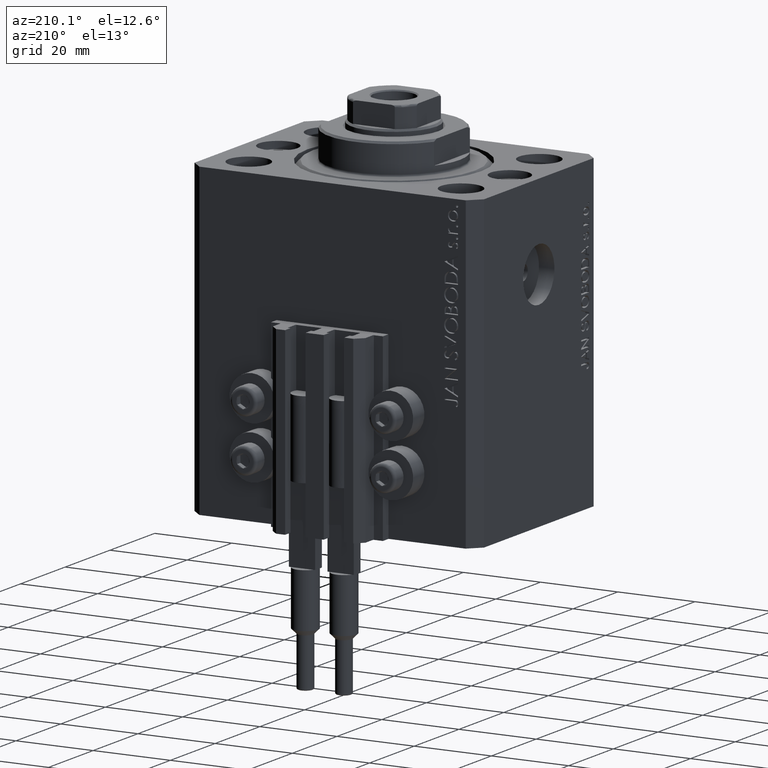
[diagram: clean part render]
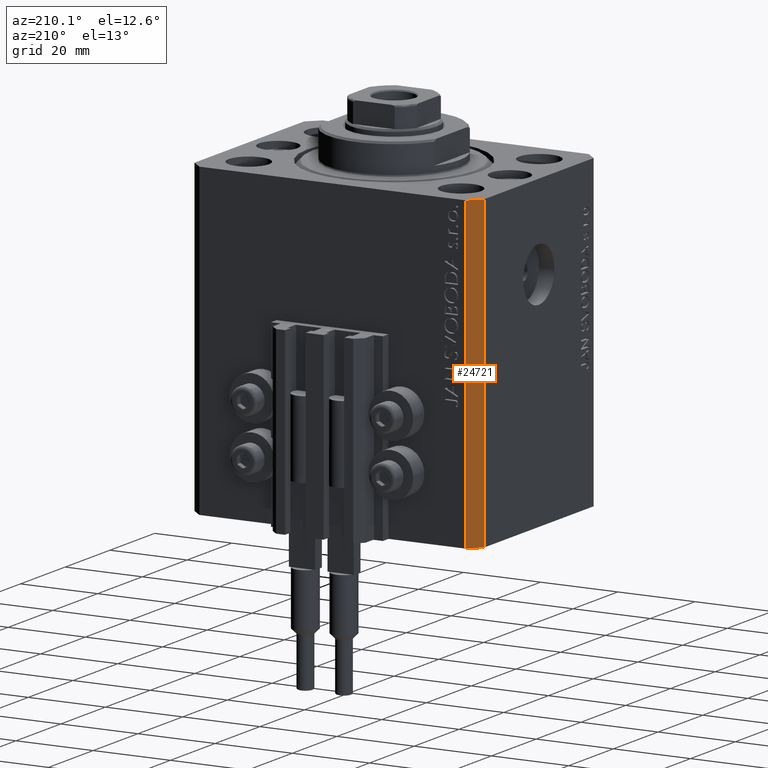
[diagram: same view with one face highlighted and labeled with its STEP entity id]
A machine part, auxiliary view. The second image highlights one B-rep face of the part: STEP entity #24721.
In plain terms, the highlighted planar face has unit normal (-0.7071, 0.7071, 0).
Its self-contained STEP definition (entity closure, byte-faithful):
#2463 = CARTESIAN_POINT ( 'NONE',  ( -37.49999999999999289, 24.50000000000000000, 0.000000000000000000 ) ) ;
#2495 = VECTOR ( 'NONE', #10036, 1000.000000000000000 ) ;
#3935 = DIRECTION ( 'NONE',  ( 0.000000000000000000, 0.000000000000000000, 1.000000000000000000 ) ) ;
#4097 = VERTEX_POINT ( 'NONE', #2463 ) ;
#5797 = EDGE_CURVE ( 'NONE', #18677, #41186, #39230, .T. ) ;
#5959 = CARTESIAN_POINT ( 'NONE',  ( -34.49999999999999289, 27.50000000000000000, -80.00000000000000000 ) ) ;
#6839 = CARTESIAN_POINT ( 'NONE',  ( -37.49999999999999289, 24.50000000000000000, -80.00000000000000000 ) ) ;
#8761 = CARTESIAN_POINT ( 'NONE',  ( -34.49999999999999289, 27.50000000000000000, -80.00000000000000000 ) ) ;
#9562 = DIRECTION ( 'NONE',  ( -0.7071067811865479058, 0.7071067811865471286, 0.000000000000000000 ) ) ;
#10036 = DIRECTION ( 'NONE',  ( -0.7071067811865471286, -0.7071067811865479058, 0.000000000000000000 ) ) ;
#10419 = ORIENTED_EDGE ( 'NONE', *, *, #5797, .F. ) ;
#13969 = CARTESIAN_POINT ( 'NONE',  ( -34.49999999999999289, 27.50000000000000000, 0.000000000000000000 ) ) ;
#14030 = VECTOR ( 'NONE', #3935, 1000.000000000000000 ) ;
#14411 = DIRECTION ( 'NONE',  ( -0.7071067811865471286, -0.7071067811865479058, 0.000000000000000000 ) ) ;
#15157 = ORIENTED_EDGE ( 'NONE', *, *, #24089, .F. ) ;
#15206 = LINE ( 'NONE', #15679, #44601 ) ;
#15679 = CARTESIAN_POINT ( 'NONE',  ( -37.49999999999999289, 24.50000000000000000, -80.00000000000000000 ) ) ;
#16199 = ORIENTED_EDGE ( 'NONE', *, *, #16491, .T. ) ;
#16491 = EDGE_CURVE ( 'NONE', #18677, #19811, #36010, .T. ) ;
#17764 = EDGE_LOOP ( 'NONE', ( #15157, #10419, #16199, #27450 ) ) ;
#18677 = VERTEX_POINT ( 'NONE', #8761 ) ;
#19811 = VERTEX_POINT ( 'NONE', #6839 ) ;
#20730 = DIRECTION ( 'NONE',  ( -0.7071067811865471286, -0.7071067811865479058, 0.000000000000000000 ) ) ;
#23026 = EDGE_CURVE ( 'NONE', #19811, #4097, #15206, .T. ) ;
#24089 = EDGE_CURVE ( 'NONE', #41186, #4097, #37214, .T. ) ;
#24721 = ADVANCED_FACE ( 'NONE', ( #46459 ), #27998, .T. ) ;
#25332 = CARTESIAN_POINT ( 'NONE',  ( -34.49999999999999289, 27.50000000000000000, -80.00000000000000000 ) ) ;
#26828 = DIRECTION ( 'NONE',  ( 0.000000000000000000, 0.000000000000000000, 1.000000000000000000 ) ) ;
#27450 = ORIENTED_EDGE ( 'NONE', *, *, #23026, .T. ) ;
#27998 = PLANE ( 'NONE',  #39979 ) ;
#32239 = VECTOR ( 'NONE', #14411, 1000.000000000000000 ) ;
#36010 = LINE ( 'NONE', #25332, #2495 ) ;
#37214 = LINE ( 'NONE', #47657, #32239 ) ;
#39230 = LINE ( 'NONE', #5959, #14030 ) ;
#39979 = AXIS2_PLACEMENT_3D ( 'NONE', #42828, #9562, #20730 ) ;
#41186 = VERTEX_POINT ( 'NONE', #13969 ) ;
#42828 = CARTESIAN_POINT ( 'NONE',  ( -34.49999999999999289, 27.50000000000000000, -80.00000000000000000 ) ) ;
#44601 = VECTOR ( 'NONE', #26828, 1000.000000000000000 ) ;
#46459 = FACE_OUTER_BOUND ( 'NONE', #17764, .T. ) ;
#47657 = CARTESIAN_POINT ( 'NONE',  ( -34.49999999999999289, 27.50000000000000000, 0.000000000000000000 ) ) ;